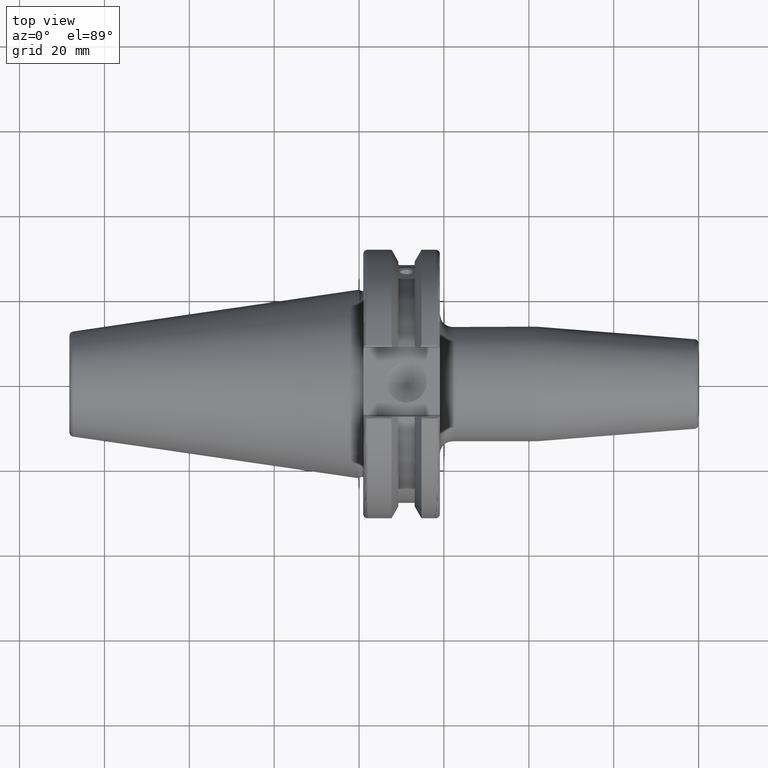
[diagram: clean part render]
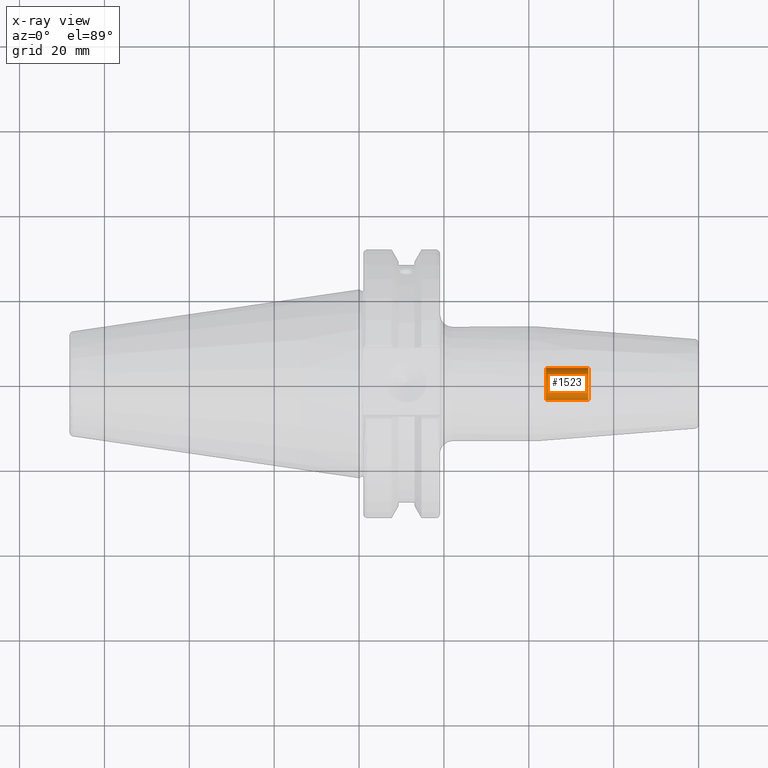
[diagram: x-ray — body ghosted, one internal face saturated and labeled with its STEP entity id]
A machine part, top view, then the same camera in x-ray: the body is ghosted and one INTERNAL B-rep face — a face not visible from any outside direction — is saturated and labeled: STEP entity #1523.
In plain terms, the highlighted cylindrical surface (bore or boss wall) has radius 3.775 mm, axis along (1, 0, 0).
Its self-contained STEP definition (entity closure, byte-faithful):
#84=CYLINDRICAL_SURFACE('',#1652,3.775);
#179=LINE('',#2417,#275);
#275=VECTOR('',#1881,3.775);
#379=FACE_OUTER_BOUND('',#472,.T.);
#472=EDGE_LOOP('',(#1085,#1086,#1087,#1088));
#581=CIRCLE('',#1653,3.775);
#582=CIRCLE('',#1654,3.77499999999999);
#668=VERTEX_POINT('',#2414);
#669=VERTEX_POINT('',#2416);
#831=EDGE_CURVE('',#668,#668,#581,.T.);
#832=EDGE_CURVE('',#668,#669,#179,.T.);
#833=EDGE_CURVE('',#669,#669,#582,.T.);
#1085=ORIENTED_EDGE('',*,*,#831,.T.);
#1086=ORIENTED_EDGE('',*,*,#832,.T.);
#1087=ORIENTED_EDGE('',*,*,#833,.F.);
#1088=ORIENTED_EDGE('',*,*,#832,.F.);
#1523=ADVANCED_FACE('',(#379),#84,.F.);
#1652=AXIS2_PLACEMENT_3D('',#2413,#1877,#1878);
#1653=AXIS2_PLACEMENT_3D('',#2415,#1879,#1880);
#1654=AXIS2_PLACEMENT_3D('',#2418,#1882,#1883);
#1877=DIRECTION('center_axis',(1.,0.,0.));
#1878=DIRECTION('ref_axis',(0.,1.,0.));
#1879=DIRECTION('center_axis',(1.,0.,0.));
#1880=DIRECTION('ref_axis',(0.,0.,-1.));
#1881=DIRECTION('',(-1.,0.,0.));
#1882=DIRECTION('center_axis',(1.,0.,0.));
#1883=DIRECTION('ref_axis',(0.,0.,-1.));
#2413=CARTESIAN_POINT('Origin',(49.,0.,0.));
#2414=CARTESIAN_POINT('',(54.,-3.775,-4.62304166678125E-16));
#2415=CARTESIAN_POINT('Origin',(54.,0.,0.));
#2416=CARTESIAN_POINT('',(44.,-3.775,-4.62304166678125E-16));
#2417=CARTESIAN_POINT('',(49.,-3.775,-4.62304166678125E-16));
#2418=CARTESIAN_POINT('Origin',(44.,0.,0.));